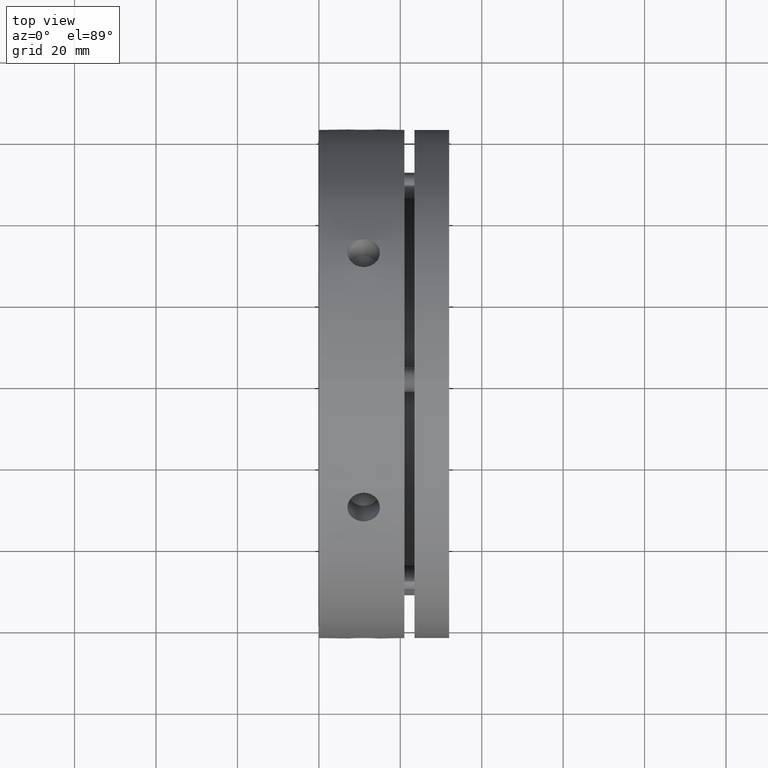
[diagram: clean part render]
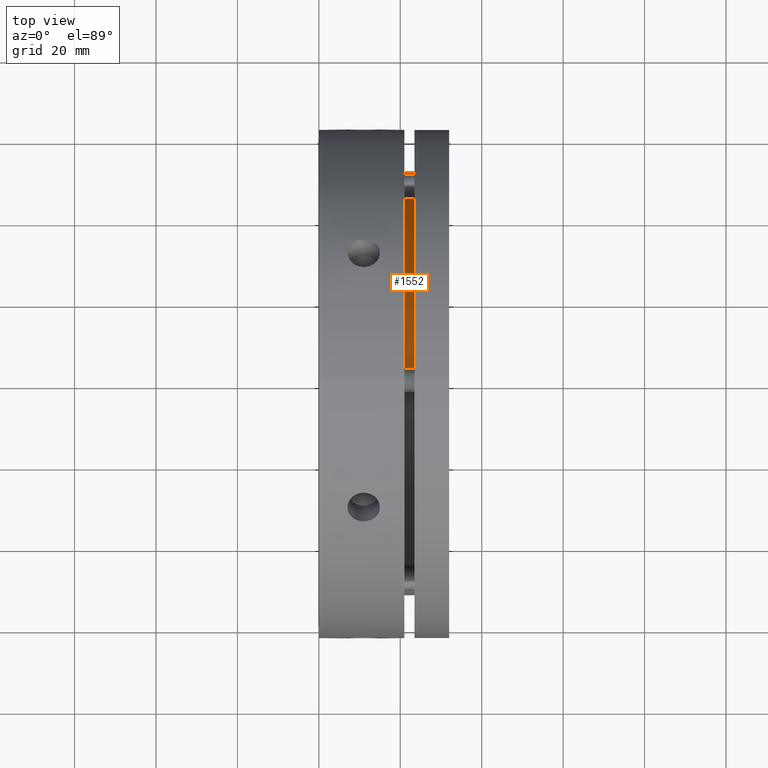
[diagram: same view with one face highlighted and labeled with its STEP entity id]
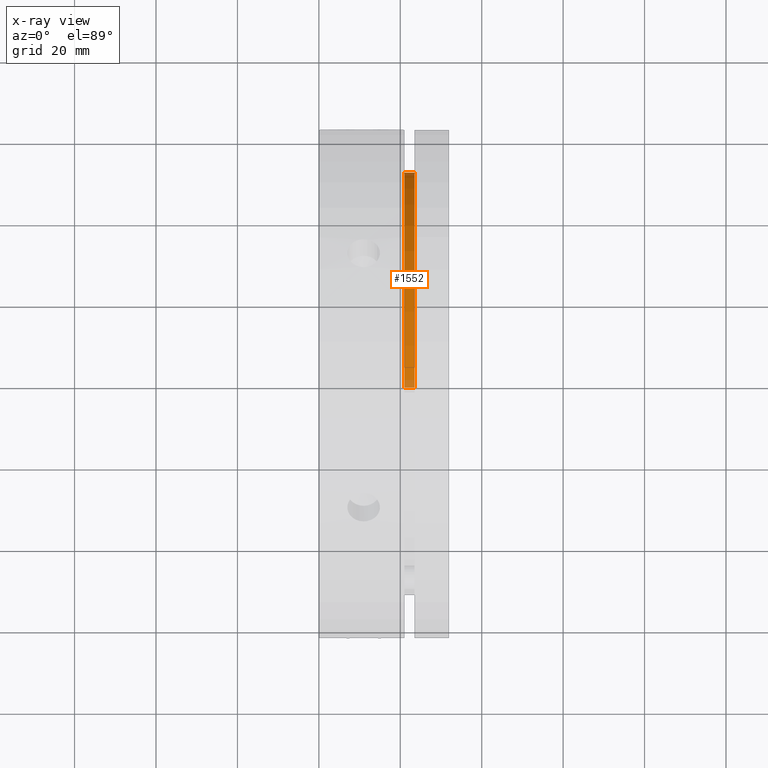
[diagram: x-ray of the same camera — body ghosted, the highlighted face saturated]
A machine part, top view. The second image highlights one B-rep face of the part: STEP entity #1552.
The next image is the same camera in x-ray: the body ghosted, the highlighted face saturated — about 4% of this face is hidden behind the body in this view.
In plain terms, the highlighted cylindrical surface (partial cylindrical patch) has radius 52 mm, axis along (-1, 0, 0).
Its self-contained STEP definition (entity closure, byte-faithful):
#147 = VERTEX_POINT ( 'NONE', #1188 ) ;
#152 = VERTEX_POINT ( 'NONE', #1193 ) ;
#174 = VERTEX_POINT ( 'NONE', #1214 ) ;
#179 = VERTEX_POINT ( 'NONE', #1218 ) ;
#401 = EDGE_LOOP ( 'NONE', ( #3630, #3629, #3628, #3627 ) ) ;
#876 = EDGE_CURVE ( 'NONE', #174, #152, #3379, .T. ) ;
#877 = EDGE_CURVE ( 'NONE', #152, #179, #3381, .T. ) ;
#878 = EDGE_CURVE ( 'NONE', #179, #147, #3376, .T. ) ;
#879 = EDGE_CURVE ( 'NONE', #174, #147, #3374, .T. ) ;
#1188 = CARTESIAN_POINT ( 'NONE',  ( 20.99999999999998600, 0.0000000000000000000, 52.00000000000000700 ) ) ;
#1193 = CARTESIAN_POINT ( 'NONE',  ( 23.49999999999998600, 6.368163355566237200E-015, -52.00000000000000700 ) ) ;
#1214 = CARTESIAN_POINT ( 'NONE',  ( 23.49999999999998600, 0.0000000000000000000, 52.00000000000000700 ) ) ;
#1218 = CARTESIAN_POINT ( 'NONE',  ( 20.99999999999998600, 6.368163355566237200E-015, -52.00000000000000700 ) ) ;
#1552 = ADVANCED_FACE ( 'NONE', ( #1864 ), #1873, .T. ) ;
#1864 = FACE_OUTER_BOUND ( 'NONE', #401, .T. ) ;
#1873 = CYLINDRICAL_SURFACE ( 'NONE', #3528, 52.00000000000000700 ) ;
#2375 = CARTESIAN_POINT ( 'NONE',  ( 23.49999999999998600, 0.0000000000000000000, 0.0000000000000000000 ) ) ;
#2376 = DIRECTION ( 'NONE',  ( -1.000000000000000000, 0.0000000000000000000, 0.0000000000000000000 ) ) ;
#2377 = DIRECTION ( 'NONE',  ( 0.0000000000000000000, 0.0000000000000000000, 1.000000000000000000 ) ) ;
#2378 = CARTESIAN_POINT ( 'NONE',  ( 22.24999999999998600, 6.368163355566237200E-015, -52.00000000000000700 ) ) ;
#2379 = DIRECTION ( 'NONE',  ( -1.000000000000000000, 0.0000000000000000000, 0.0000000000000000000 ) ) ;
#2380 = CARTESIAN_POINT ( 'NONE',  ( 20.99999999999998600, 0.0000000000000000000, 0.0000000000000000000 ) ) ;
#2381 = DIRECTION ( 'NONE',  ( 1.000000000000000000, -0.0000000000000000000, -0.0000000000000000000 ) ) ;
#2382 = DIRECTION ( 'NONE',  ( 0.0000000000000000000, 0.0000000000000000000, 1.000000000000000000 ) ) ;
#2384 = DIRECTION ( 'NONE',  ( -1.000000000000000000, 0.0000000000000000000, 0.0000000000000000000 ) ) ;
#2918 = DIRECTION ( 'NONE',  ( 0.0000000000000000000, 0.0000000000000000000, 1.000000000000000000 ) ) ;
#2920 = DIRECTION ( 'NONE',  ( -1.000000000000000000, 0.0000000000000000000, 0.0000000000000000000 ) ) ;
#2922 = CARTESIAN_POINT ( 'NONE',  ( 22.24999999999998600, 0.0000000000000000000, 0.0000000000000000000 ) ) ;
#3372 = VECTOR ( 'NONE', #2384, 1000.000000000000000 ) ;
#3374 = LINE ( 'NONE', #4803, #3372 ) ;
#3375 = VECTOR ( 'NONE', #2379, 1000.000000000000000 ) ;
#3376 = CIRCLE ( 'NONE', #3832, 52.00000000000000700 ) ;
#3379 = CIRCLE ( 'NONE', #3833, 52.00000000000000700 ) ;
#3381 = LINE ( 'NONE', #2378, #3375 ) ;
#3528 = AXIS2_PLACEMENT_3D ( 'NONE', #2922, #2920, #2918 ) ;
#3627 = ORIENTED_EDGE ( 'NONE', *, *, #879, .F. ) ;
#3628 = ORIENTED_EDGE ( 'NONE', *, *, #878, .T. ) ;
#3629 = ORIENTED_EDGE ( 'NONE', *, *, #877, .T. ) ;
#3630 = ORIENTED_EDGE ( 'NONE', *, *, #876, .T. ) ;
#3832 = AXIS2_PLACEMENT_3D ( 'NONE', #2380, #2381, #2382 ) ;
#3833 = AXIS2_PLACEMENT_3D ( 'NONE', #2375, #2376, #2377 ) ;
#4803 = CARTESIAN_POINT ( 'NONE',  ( 22.24999999999998600, 0.0000000000000000000, 52.00000000000000700 ) ) ;